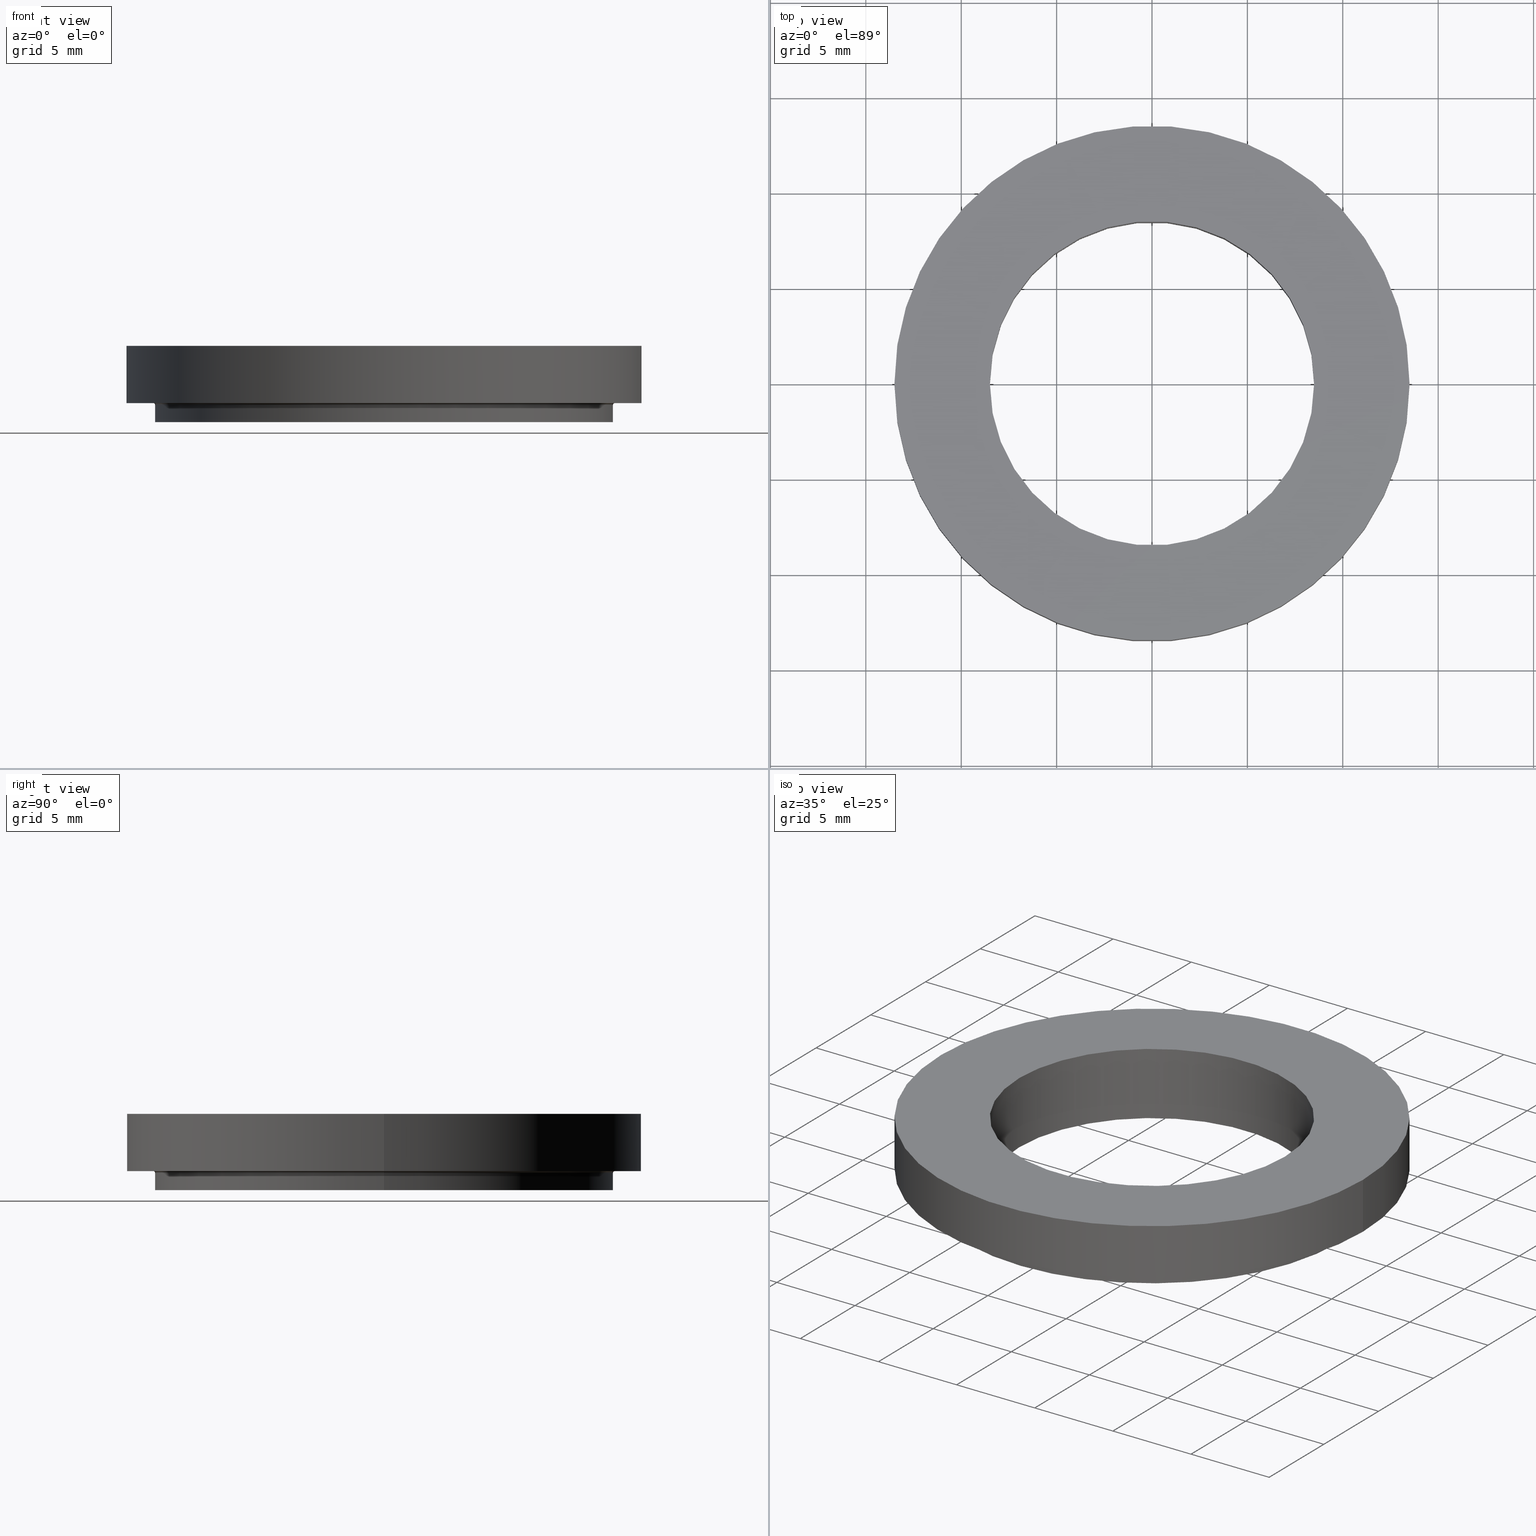
[diagram: canonical four-view strip — front | top / right | iso, engineering-drawing reading convention]
A machine part, canonical four-view strip (front | top / right | iso — engineering-drawing reading convention). The complete STEP part file that produces these views, byte-faithful:
ISO-10303-21;
HEADER;
FILE_DESCRIPTION(
/* description */ (''),
/* implementation_level */ '2;1');
FILE_NAME(
/* name */ '393201700.stp',
/* time_stamp */ '2021-01-08T12:36:24',
/* author */ ('LRA'),
/* organization */ ('REGO-FIX'),
/* preprocessor_version */ ' Unknown',
/* originating_system */ 'SIEMENS PLM Software Solid Edge ST10',
/* authorization */ 'Unknown');
FILE_SCHEMA (('AUTOMOTIVE_DESIGN { 1 0 10303 214 2 1 1}'));
ENDSEC;
DATA;
#10=PROPERTY_DEFINITION_REPRESENTATION(#14,#12);
#11=PROPERTY_DEFINITION_REPRESENTATION(#15,#13);
#12=REPRESENTATION('',(#16),#177);
#13=REPRESENTATION('',(#17),#177);
#14=PROPERTY_DEFINITION('pmi validation property','',#182);
#15=PROPERTY_DEFINITION('pmi validation property','',#182);
#16=VALUE_REPRESENTATION_ITEM('number of annotations',COUNT_MEASURE(0.));
#17=VALUE_REPRESENTATION_ITEM('number of views',COUNT_MEASURE(0.));
#18=SHAPE_REPRESENTATION_RELATIONSHIP('','',#108,#19);
#19=ADVANCED_BREP_SHAPE_REPRESENTATION('',(#106),#177);
#20=TOROIDAL_SURFACE('',#119,12.1,0.1);
#21=CYLINDRICAL_SURFACE('',#113,8.5);
#22=CYLINDRICAL_SURFACE('',#117,12.);
#23=CYLINDRICAL_SURFACE('',#123,13.5);
#24=ORIENTED_EDGE('',*,*,#38,.F.);
#25=ORIENTED_EDGE('',*,*,#39,.T.);
#26=ORIENTED_EDGE('',*,*,#40,.F.);
#27=ORIENTED_EDGE('',*,*,#38,.T.);
#28=ORIENTED_EDGE('',*,*,#41,.F.);
#29=ORIENTED_EDGE('',*,*,#40,.T.);
#30=ORIENTED_EDGE('',*,*,#42,.F.);
#31=ORIENTED_EDGE('',*,*,#41,.T.);
#32=ORIENTED_EDGE('',*,*,#43,.F.);
#33=ORIENTED_EDGE('',*,*,#42,.T.);
#34=ORIENTED_EDGE('',*,*,#43,.T.);
#35=ORIENTED_EDGE('',*,*,#44,.F.);
#36=ORIENTED_EDGE('',*,*,#44,.T.);
#37=ORIENTED_EDGE('',*,*,#39,.F.);
#38=EDGE_CURVE('',#45,#45,#52,.T.);
#39=EDGE_CURVE('',#46,#46,#53,.T.);
#40=EDGE_CURVE('',#47,#47,#54,.T.);
#41=EDGE_CURVE('',#48,#48,#55,.T.);
#42=EDGE_CURVE('',#49,#49,#56,.T.);
#43=EDGE_CURVE('',#50,#50,#57,.T.);
#44=EDGE_CURVE('',#51,#51,#58,.T.);
#45=VERTEX_POINT('',#157);
#46=VERTEX_POINT('',#159);
#47=VERTEX_POINT('',#162);
#48=VERTEX_POINT('',#165);
#49=VERTEX_POINT('',#168);
#50=VERTEX_POINT('',#171);
#51=VERTEX_POINT('',#174);
#52=CIRCLE('',#111,8.5);
#53=CIRCLE('',#112,13.5);
#54=CIRCLE('',#114,8.5);
#55=CIRCLE('',#116,12.);
#56=CIRCLE('',#118,12.);
#57=CIRCLE('',#120,12.1);
#58=CIRCLE('',#122,13.5);
#59=EDGE_LOOP('',(#24));
#60=EDGE_LOOP('',(#25));
#61=EDGE_LOOP('',(#26));
#62=EDGE_LOOP('',(#27));
#63=EDGE_LOOP('',(#28));
#64=EDGE_LOOP('',(#29));
#65=EDGE_LOOP('',(#30));
#66=EDGE_LOOP('',(#31));
#67=EDGE_LOOP('',(#32));
#68=EDGE_LOOP('',(#33));
#69=EDGE_LOOP('',(#34));
#70=EDGE_LOOP('',(#35));
#71=EDGE_LOOP('',(#36));
#72=EDGE_LOOP('',(#37));
#73=FACE_BOUND('',#59,.T.);
#74=FACE_BOUND('',#60,.T.);
#75=FACE_BOUND('',#61,.T.);
#76=FACE_BOUND('',#62,.T.);
#77=FACE_BOUND('',#63,.T.);
#78=FACE_BOUND('',#64,.T.);
#79=FACE_BOUND('',#65,.T.);
#80=FACE_BOUND('',#66,.T.);
#81=FACE_BOUND('',#67,.T.);
#82=FACE_BOUND('',#68,.T.);
#83=FACE_BOUND('',#69,.T.);
#84=FACE_BOUND('',#70,.T.);
#85=FACE_BOUND('',#71,.T.);
#86=FACE_BOUND('',#72,.T.);
#87=PLANE('',#110);
#88=PLANE('',#115);
#89=PLANE('',#121);
#90=ADVANCED_FACE('',(#73,#74),#87,.T.);
#91=ADVANCED_FACE('',(#75,#76),#21,.F.);
#92=ADVANCED_FACE('',(#77,#78),#88,.T.);
#93=ADVANCED_FACE('',(#79,#80),#22,.T.);
#94=ADVANCED_FACE('',(#81,#82),#20,.F.);
#95=ADVANCED_FACE('',(#83,#84),#89,.T.);
#96=ADVANCED_FACE('',(#85,#86),#23,.T.);
#97=CLOSED_SHELL('',(#90,#91,#92,#93,#94,#95,#96));
#98=STYLED_ITEM('',(#99),#106);
#99=PRESENTATION_STYLE_ASSIGNMENT((#100));
#100=SURFACE_STYLE_USAGE(.BOTH.,#101);
#101=SURFACE_SIDE_STYLE('',(#102));
#102=SURFACE_STYLE_FILL_AREA(#103);
#103=FILL_AREA_STYLE('',(#104));
#104=FILL_AREA_STYLE_COLOUR('',#105);
#105=COLOUR_RGB( ' ', 0.5, 0.5, 0.5 );
#106=MANIFOLD_SOLID_BREP('NOCUT',#97);
#107=SHAPE_DEFINITION_REPRESENTATION(#182,#108);
#108=SHAPE_REPRESENTATION('393201700',(#109),#177);
#109=AXIS2_PLACEMENT_3D('',#154,#124,#125);
#110=AXIS2_PLACEMENT_3D('',#155,#126,#127);
#111=AXIS2_PLACEMENT_3D('',#156,#128,#129);
#112=AXIS2_PLACEMENT_3D('',#158,#130,#131);
#113=AXIS2_PLACEMENT_3D('',#160,#132,#133);
#114=AXIS2_PLACEMENT_3D('',#161,#134,#135);
#115=AXIS2_PLACEMENT_3D('',#163,#136,#137);
#116=AXIS2_PLACEMENT_3D('',#164,#138,#139);
#117=AXIS2_PLACEMENT_3D('',#166,#140,#141);
#118=AXIS2_PLACEMENT_3D('',#167,#142,#143);
#119=AXIS2_PLACEMENT_3D('',#169,#144,#145);
#120=AXIS2_PLACEMENT_3D('',#170,#146,#147);
#121=AXIS2_PLACEMENT_3D('',#172,#148,#149);
#122=AXIS2_PLACEMENT_3D('',#173,#150,#151);
#123=AXIS2_PLACEMENT_3D('',#175,#152,#153);
#124=DIRECTION('',(0.,0.,1.));
#125=DIRECTION('',(1.,0.,0.));
#126=DIRECTION('',(0.,0.,1.));
#127=DIRECTION('',(1.,0.,0.));
#128=DIRECTION('',(0.,0.,1.));
#129=DIRECTION('',(1.,0.,0.));
#130=DIRECTION('',(0.,0.,1.));
#131=DIRECTION('',(1.,0.,0.));
#132=DIRECTION('',(0.,0.,-1.));
#133=DIRECTION('',(1.,0.,0.));
#134=DIRECTION('',(0.,0.,1.));
#135=DIRECTION('',(1.,0.,0.));
#136=DIRECTION('',(0.,0.,-1.));
#137=DIRECTION('',(-1.,0.,0.));
#138=DIRECTION('',(0.,0.,1.));
#139=DIRECTION('',(1.,0.,0.));
#140=DIRECTION('',(0.,0.,-1.));
#141=DIRECTION('',(1.,0.,0.));
#142=DIRECTION('',(0.,0.,1.));
#143=DIRECTION('',(1.,0.,0.));
#144=DIRECTION('',(0.,0.,1.));
#145=DIRECTION('',(1.,0.,0.));
#146=DIRECTION('',(0.,0.,1.));
#147=DIRECTION('',(1.,0.,0.));
#148=DIRECTION('',(0.,0.,-1.));
#149=DIRECTION('',(-1.,0.,0.));
#150=DIRECTION('',(0.,0.,1.));
#151=DIRECTION('',(1.,0.,0.));
#152=DIRECTION('',(0.,0.,-1.));
#153=DIRECTION('',(1.,0.,0.));
#154=CARTESIAN_POINT('',(0.,0.,0.));
#155=CARTESIAN_POINT('',(8.5,0.,4.));
#156=CARTESIAN_POINT('',(0.,0.,4.));
#157=CARTESIAN_POINT('',(8.5,0.,4.));
#158=CARTESIAN_POINT('',(0.,0.,4.));
#159=CARTESIAN_POINT('',(13.5,0.,4.));
#160=CARTESIAN_POINT('',(0.,0.,60.));
#161=CARTESIAN_POINT('',(0.,0.,0.));
#162=CARTESIAN_POINT('',(8.5,0.,0.));
#163=CARTESIAN_POINT('',(12.,0.,1.0842021724855E-16));
#164=CARTESIAN_POINT('',(0.,0.,0.));
#165=CARTESIAN_POINT('',(12.,0.,0.));
#166=CARTESIAN_POINT('',(0.,0.,60.));
#167=CARTESIAN_POINT('',(0.,0.,0.9));
#168=CARTESIAN_POINT('',(12.,0.,0.9));
#169=CARTESIAN_POINT('',(0.,0.,0.9));
#170=CARTESIAN_POINT('',(0.,0.,1.));
#171=CARTESIAN_POINT('',(12.1,0.,1.));
#172=CARTESIAN_POINT('',(13.2355095289373,0.,1.));
#173=CARTESIAN_POINT('',(0.,0.,1.));
#174=CARTESIAN_POINT('',(13.5,0.,1.));
#175=CARTESIAN_POINT('',(0.,0.,60.));
#176=MECHANICAL_DESIGN_GEOMETRIC_PRESENTATION_REPRESENTATION('',(#98),#177);
#177=(
GEOMETRIC_REPRESENTATION_CONTEXT(3)
GLOBAL_UNCERTAINTY_ASSIGNED_CONTEXT((#178))
GLOBAL_UNIT_ASSIGNED_CONTEXT((#181,#180,#179))
REPRESENTATION_CONTEXT('393201700','TOP_LEVEL_ASSEMBLY_PART')
);
#178=UNCERTAINTY_MEASURE_WITH_UNIT(LENGTH_MEASURE(0.005),#181,
'DISTANCE_ACCURACY_VALUE','Maximum Tolerance applied to model');
#179=(
NAMED_UNIT(*)
SI_UNIT($,.STERADIAN.)
SOLID_ANGLE_UNIT()
);
#180=(
NAMED_UNIT(*)
PLANE_ANGLE_UNIT()
SI_UNIT($,.RADIAN.)
);
#181=(
LENGTH_UNIT()
NAMED_UNIT(*)
SI_UNIT(.MILLI.,.METRE.)
);
#182=PRODUCT_DEFINITION_SHAPE('','',#183);
#183=PRODUCT_DEFINITION('','',#185,#184);
#184=PRODUCT_DEFINITION_CONTEXT('',#191,'design');
#185=PRODUCT_DEFINITION_FORMATION_WITH_SPECIFIED_SOURCE('','',#187,
 .NOT_KNOWN.);
#186=PRODUCT_RELATED_PRODUCT_CATEGORY('','',(#187));
#187=PRODUCT('NOCUT','NOCUT','NOCUT',(#189));
#188=PRODUCT_CATEGORY('','');
#189=PRODUCT_CONTEXT('',#191,'mechanical');
#190=APPLICATION_PROTOCOL_DEFINITION('international standard',
'automotive_design',2010,#191);
#191=APPLICATION_CONTEXT(
'core data for automotive mechanical design processes');
#192=AXIS2_PLACEMENT_3D('PCS',#193,#194,#195);
#193=CARTESIAN_POINT('',(0.,0.,0.));
#194=DIRECTION('',(0.,0.,1.));
#195=DIRECTION('',(1.,0.,0.));
#196=CONSTRUCTIVE_GEOMETRY_REPRESENTATION_RELATIONSHIP('coordinate systems',$,#19,#197);
#197=CONSTRUCTIVE_GEOMETRY_REPRESENTATION('coordinate systems',(#192),#177);
ENDSEC;
END-ISO-10303-21;

